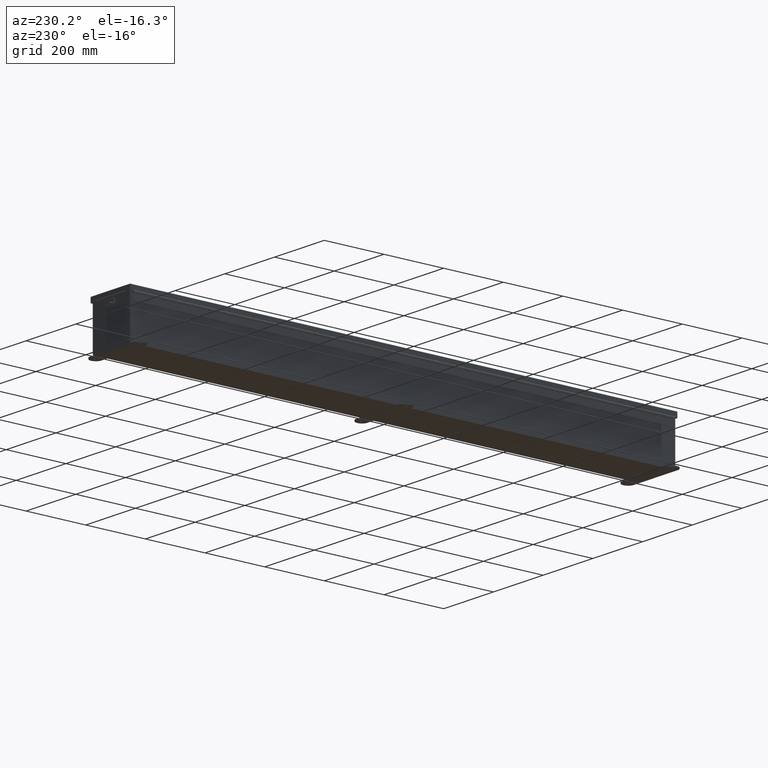
[diagram: clean part render]
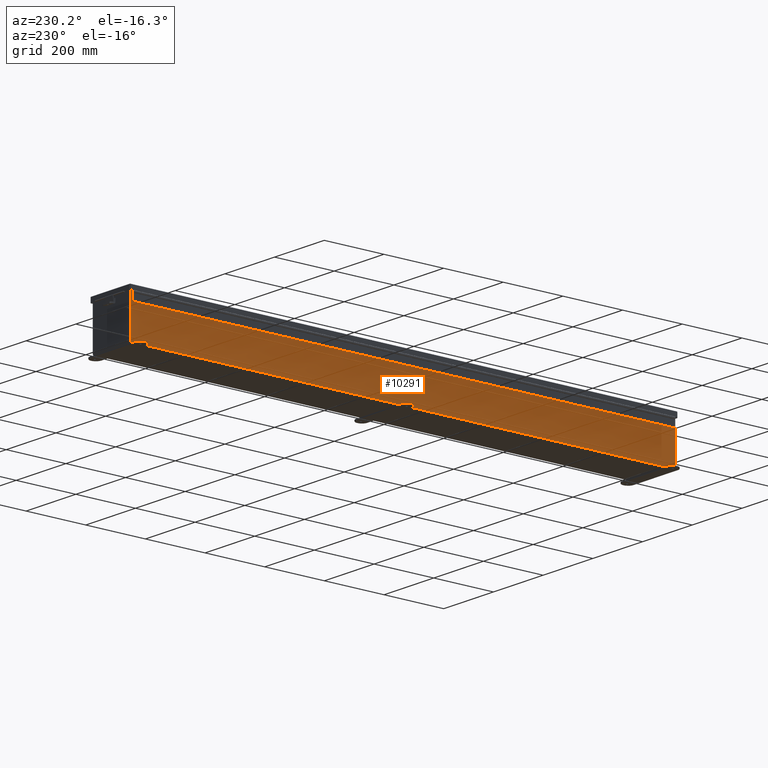
[diagram: same view with one face highlighted and labeled with its STEP entity id]
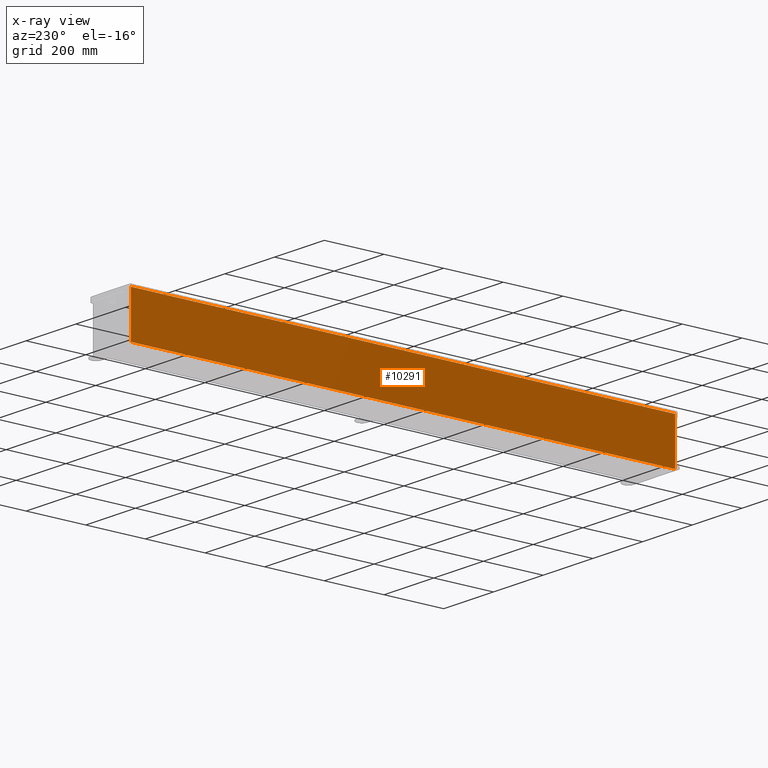
[diagram: x-ray of the same camera — body ghosted, the highlighted face saturated]
A machine part, auxiliary view. The second image highlights one B-rep face of the part: STEP entity #10291.
The next image is the same camera in x-ray: the body ghosted, the highlighted face saturated — about 0% of this face is hidden behind the body in this view.
In plain terms, the highlighted planar face has unit normal (1, 0, 0).
Its self-contained STEP definition (entity closure, byte-faithful):
#673 = CARTESIAN_POINT ( 'NONE',  ( -2.999999999999998700, 35.92530000000001400, 0.01299999999999984300 ) ) ;
#1093 = ORIENTED_EDGE ( 'NONE', *, *, #44877, .T. ) ;
#1400 = EDGE_CURVE ( 'NONE', #46902, #33155, #11940, .T. ) ;
#1575 = AXIS2_PLACEMENT_3D ( 'NONE', #20551, #5133, #32231 ) ;
#3312 = CARTESIAN_POINT ( 'NONE',  ( -3.000000000000018200, -35.92529999999997200, 5.837599999999999200 ) ) ;
#5133 = DIRECTION ( 'NONE',  ( 1.000000000000000000, 0.0000000000000000000, 3.455316574900958600E-015 ) ) ;
#6406 = VERTEX_POINT ( 'NONE', #20721 ) ;
#6789 = ORIENTED_EDGE ( 'NONE', *, *, #44369, .F. ) ;
#8244 = VECTOR ( 'NONE', #46353, 39.37007874015748100 ) ;
#10086 = LINE ( 'NONE', #34366, #19177 ) ;
#10291 = ADVANCED_FACE ( 'NONE', ( #34110 ), #28335, .F. ) ;
#11137 = CARTESIAN_POINT ( 'NONE',  ( -2.999999999999998700, -35.92529999999999300, 0.01299999999999820400 ) ) ;
#11940 = LINE ( 'NONE', #21824, #44088 ) ;
#14294 = EDGE_LOOP ( 'NONE', ( #16662, #44772, #6789, #1093 ) ) ;
#14995 = DIRECTION ( 'NONE',  ( 3.455316574900958600E-015, 0.0000000000000000000, -1.000000000000000000 ) ) ;
#16662 = ORIENTED_EDGE ( 'NONE', *, *, #1400, .T. ) ;
#18542 = LINE ( 'NONE', #19285, #8244 ) ;
#19177 = VECTOR ( 'NONE', #14995, 39.37007874015748100 ) ;
#19285 = CARTESIAN_POINT ( 'NONE',  ( -2.999999999999998700, -35.92529999999999300, 1.621181043740136300E-014 ) ) ;
#20551 = CARTESIAN_POINT ( 'NONE',  ( -2.999999999999998700, 0.0000000000000000000, -1.062859610035002400E-014 ) ) ;
#20721 = CARTESIAN_POINT ( 'NONE',  ( -2.999999999999998700, 35.92530000000001400, 0.01299999999999902300 ) ) ;
#21824 = CARTESIAN_POINT ( 'NONE',  ( -3.000000000000018200, -35.92529999999998600, 5.837599999999999200 ) ) ;
#22240 = VECTOR ( 'NONE', #47254, 39.37007874015748100 ) ;
#28335 = PLANE ( 'NONE',  #1575 ) ;
#31358 = LINE ( 'NONE', #673, #22240 ) ;
#32231 = DIRECTION ( 'NONE',  ( 3.455316574900958600E-015, 0.0000000000000000000, -1.000000000000000000 ) ) ;
#33155 = VERTEX_POINT ( 'NONE', #38856 ) ;
#34110 = FACE_OUTER_BOUND ( 'NONE', #14294, .T. ) ;
#34366 = CARTESIAN_POINT ( 'NONE',  ( -2.999999999999998700, 35.92530000000001400, -1.062859610035002400E-014 ) ) ;
#37567 = DIRECTION ( 'NONE',  ( 0.0000000000000000000, 1.000000000000000000, 0.0000000000000000000 ) ) ;
#38788 = VERTEX_POINT ( 'NONE', #11137 ) ;
#38856 = CARTESIAN_POINT ( 'NONE',  ( -3.000000000000018700, 35.92530000000001400, 5.837599999999999200 ) ) ;
#42729 = EDGE_CURVE ( 'NONE', #33155, #6406, #10086, .T. ) ;
#44088 = VECTOR ( 'NONE', #37567, 39.37007874015748100 ) ;
#44369 = EDGE_CURVE ( 'NONE', #38788, #6406, #31358, .T. ) ;
#44772 = ORIENTED_EDGE ( 'NONE', *, *, #42729, .T. ) ;
#44877 = EDGE_CURVE ( 'NONE', #38788, #46902, #18542, .T. ) ;
#46353 = DIRECTION ( 'NONE',  ( -3.455316574900958600E-015, 7.470954756542614900E-016, 1.000000000000000000 ) ) ;
#46902 = VERTEX_POINT ( 'NONE', #3312 ) ;
#47254 = DIRECTION ( 'NONE',  ( -7.882522611600790900E-032, 1.000000000000000000, 2.281273637518070200E-017 ) ) ;